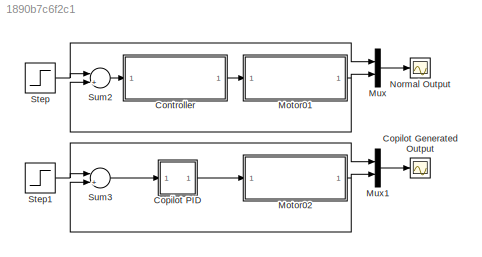
MODEL slx_1890b7c6f2c1
KIND model
CONFIG AbsTol = auto
CONFIG EnableMultiTasking = off
CONFIG FixedStep = auto
CONFIG MaxStep = auto
CONFIG MinStep = auto
CONFIG RelTol = 1e-3
CONFIG SampleTimeConstraint = Unconstrained
CONFIG Solver = VariableStepAuto
CONFIG SolverName = VariableStepAuto
CONFIG StartTime = 0.0
CONFIG StopTime = 10.0
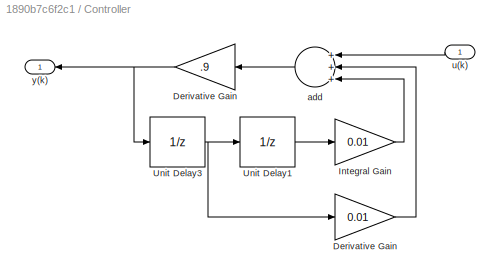
BLOCK [SubSystem] Controller
  Ports = [1, 1]
  RequestExecContextInheritance = off
BLOCK [Gain] Controller/Derivative Gain
  Gain = 0.01
  OutDataTypeStr = Inherit: Inherit via internal rule
  ParamDataTypeStr = Inherit: Inherit via internal rule
  SaturateOnIntegerOverflow = off
BLOCK [Gain] Controller/Derivative Gain 
  Gain = .9
  OutDataTypeStr = Inherit: Inherit via internal rule
  ParamDataTypeStr = Inherit: Inherit via internal rule
  SaturateOnIntegerOverflow = off
BLOCK [Gain] Controller/Integral Gain 
  Gain = 0.01
  OutDataTypeStr = Inherit: Inherit via internal rule
  ParamDataTypeStr = Inherit: Inherit via internal rule
  SaturateOnIntegerOverflow = off
BLOCK [UnitDelay] Controller/Unit Delay1
  InputProcessing = Elements as channels (sample based)
  SampleTime = -1
BLOCK [UnitDelay] Controller/Unit Delay3
  InputProcessing = Elements as channels (sample based)
  SampleTime = -1
BLOCK [Sum] Controller/add
  InputSameDT = off
  Inputs = +++
  OutDataTypeStr = Inherit: Inherit via internal rule
  Ports = [3, 1]
  SaturateOnIntegerOverflow = off
BLOCK [Inport] Controller/u(k)
  IconDisplay = Port number
BLOCK [Outport] Controller/y(k)
  IconDisplay = Port number
BLOCK [Scope] Copilot Generated Output
  Floating = off
  NumInputPorts = 1
  Ports = [1]
  ScopeSpecificationString = Simulink.scopes.TimeScopeBlockCfg('CurrentConfiguration', extmgr.ConfigurationSet(extmgr.Configuration('Core','General UI',true),extmgr.Configuration('Core','Source UI',true),extmgr.Configuration('Sources','WiredSimulink',true),extmgr.Configuration('Visuals','Time Domain',true,'SerializedDisplays',{struct('MinYLimReal','0.93588','MaxYLimReal','1.05536','YLabelReal','','MinYLimMag','0.93588','MaxYL...<+1399ch>
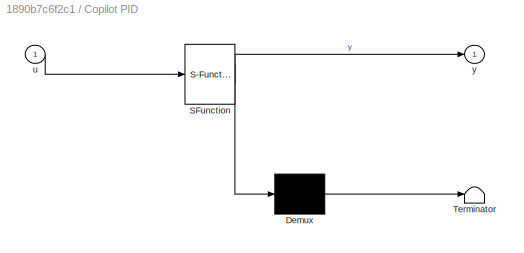
BLOCK [SubSystem] Copilot PID
  ErrorFcn = Stateflow.Translate.translate
  PermitHierarchicalResolution = ExplicitOnly
  Ports = [1, 1]
  RequestExecContextInheritance = off
  SFBlockType = MATLAB Function
  TreatAsAtomicUnit = on
BLOCK [Demux] Copilot PID/ Demux 
  Outputs = 1
  Ports = [1, 1]
BLOCK [S-Function] Copilot PID/ SFunction 
  EnableBusSupport = on
  FunctionName = sf_sfun
  PortCounts = [1 2]
  Ports = [1, 2]
  SFcnIsStateOwnerBlock = off
  SFunctionDeploymentMode = off
  Tag = Stateflow S-Function PID 2
BLOCK [Terminator] Copilot PID/ Terminator 
BLOCK [Inport] Copilot PID/u
  IconDisplay = Port number
BLOCK [Outport] Copilot PID/y
  IconDisplay = Port number
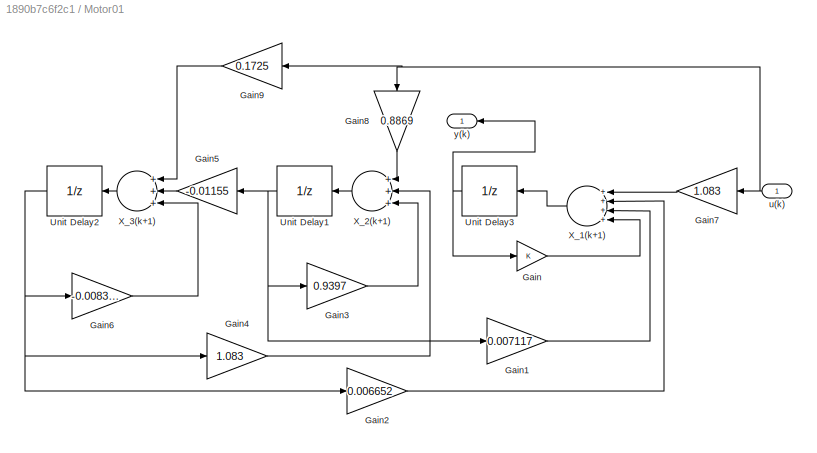
BLOCK [SubSystem] Motor01
  Ports = [1, 1]
  RequestExecContextInheritance = off
BLOCK [Gain] Motor01/Gain
  OutDataTypeStr = Inherit: Inherit via internal rule
  ParamDataTypeStr = Inherit: Inherit via internal rule
  SaturateOnIntegerOverflow = off
BLOCK [Gain] Motor01/Gain1
  Gain = 0.007117
  OutDataTypeStr = Inherit: Inherit via internal rule
  ParamDataTypeStr = Inherit: Inherit via internal rule
  SaturateOnIntegerOverflow = off
BLOCK [Gain] Motor01/Gain2
  Gain = 0.006652
  OutDataTypeStr = Inherit: Inherit via internal rule
  ParamDataTypeStr = Inherit: Inherit via internal rule
  SaturateOnIntegerOverflow = off
BLOCK [Gain] Motor01/Gain3
  Gain = 0.9397
  OutDataTypeStr = Inherit: Inherit via internal rule
  ParamDataTypeStr = Inherit: Inherit via internal rule
  SaturateOnIntegerOverflow = off
BLOCK [Gain] Motor01/Gain4
  Gain = 1.083
  OutDataTypeStr = Inherit: Inherit via internal rule
  ParamDataTypeStr = Inherit: Inherit via internal rule
  SaturateOnIntegerOverflow = off
BLOCK [Gain] Motor01/Gain5
  Gain = -0.01155
  OutDataTypeStr = Inherit: Inherit via internal rule
  ParamDataTypeStr = Inherit: Inherit via internal rule
  SaturateOnIntegerOverflow = off
BLOCK [Gain] Motor01/Gain6
  Gain = -0.008308
  OutDataTypeStr = Inherit: Inherit via internal rule
  ParamDataTypeStr = Inherit: Inherit via internal rule
  SaturateOnIntegerOverflow = off
BLOCK [Gain] Motor01/Gain7
  Gain = 1.083
  OutDataTypeStr = Inherit: Inherit via internal rule
  ParamDataTypeStr = Inherit: Inherit via internal rule
  SaturateOnIntegerOverflow = off
BLOCK [Gain] Motor01/Gain8
  Gain = 0.8869
  OutDataTypeStr = Inherit: Inherit via internal rule
  ParamDataTypeStr = Inherit: Inherit via internal rule
  SaturateOnIntegerOverflow = off
BLOCK [Gain] Motor01/Gain9
  Gain = 0.1725
  OutDataTypeStr = Inherit: Inherit via internal rule
  ParamDataTypeStr = Inherit: Inherit via internal rule
  SaturateOnIntegerOverflow = off
BLOCK [UnitDelay] Motor01/Unit Delay1
  InputProcessing = Elements as channels (sample based)
  SampleTime = -1
BLOCK [UnitDelay] Motor01/Unit Delay2
  InputProcessing = Elements as channels (sample based)
  SampleTime = -1
BLOCK [UnitDelay] Motor01/Unit Delay3
  InputProcessing = Elements as channels (sample based)
  SampleTime = -1
BLOCK [Sum] Motor01/X_1(k+1)
  InputSameDT = off
  Inputs = ++++
  OutDataTypeStr = Inherit: Inherit via internal rule
  Ports = [4, 1]
  SaturateOnIntegerOverflow = off
BLOCK [Sum] Motor01/X_2(k+1)
  InputSameDT = off
  Inputs = +++
  OutDataTypeStr = Inherit: Inherit via internal rule
  Ports = [3, 1]
  SaturateOnIntegerOverflow = off
BLOCK [Sum] Motor01/X_3(k+1)
  InputSameDT = off
  Inputs = +++
  OutDataTypeStr = Inherit: Inherit via internal rule
  Ports = [3, 1]
  SaturateOnIntegerOverflow = off
BLOCK [Inport] Motor01/u(k)
  IconDisplay = Port number
BLOCK [Outport] Motor01/y(k)
  IconDisplay = Port number
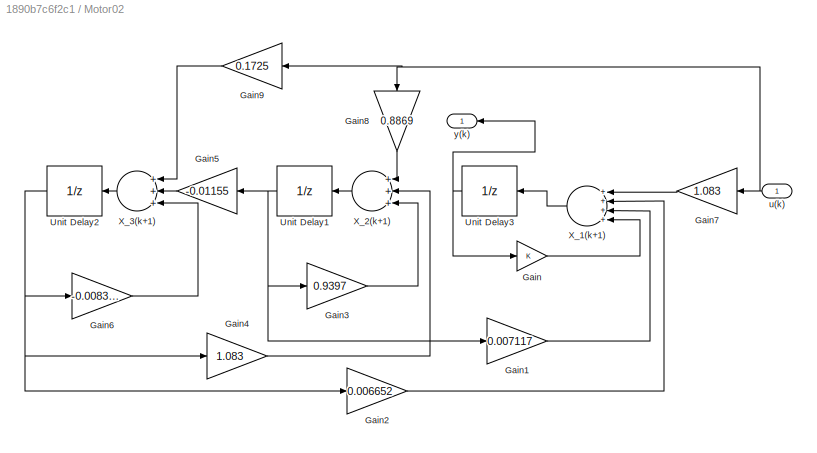
BLOCK [SubSystem] Motor02
  Ports = [1, 1]
  RequestExecContextInheritance = off
BLOCK [Gain] Motor02/Gain
  OutDataTypeStr = Inherit: Inherit via internal rule
  ParamDataTypeStr = Inherit: Inherit via internal rule
  SaturateOnIntegerOverflow = off
BLOCK [Gain] Motor02/Gain1
  Gain = 0.007117
  OutDataTypeStr = Inherit: Inherit via internal rule
  ParamDataTypeStr = Inherit: Inherit via internal rule
  SaturateOnIntegerOverflow = off
BLOCK [Gain] Motor02/Gain2
  Gain = 0.006652
  OutDataTypeStr = Inherit: Inherit via internal rule
  ParamDataTypeStr = Inherit: Inherit via internal rule
  SaturateOnIntegerOverflow = off
BLOCK [Gain] Motor02/Gain3
  Gain = 0.9397
  OutDataTypeStr = Inherit: Inherit via internal rule
  ParamDataTypeStr = Inherit: Inherit via internal rule
  SaturateOnIntegerOverflow = off
BLOCK [Gain] Motor02/Gain4
  Gain = 1.083
  OutDataTypeStr = Inherit: Inherit via internal rule
  ParamDataTypeStr = Inherit: Inherit via internal rule
  SaturateOnIntegerOverflow = off
BLOCK [Gain] Motor02/Gain5
  Gain = -0.01155
  OutDataTypeStr = Inherit: Inherit via internal rule
  ParamDataTypeStr = Inherit: Inherit via internal rule
  SaturateOnIntegerOverflow = off
BLOCK [Gain] Motor02/Gain6
  Gain = -0.008308
  OutDataTypeStr = Inherit: Inherit via internal rule
  ParamDataTypeStr = Inherit: Inherit via internal rule
  SaturateOnIntegerOverflow = off
BLOCK [Gain] Motor02/Gain7
  Gain = 1.083
  OutDataTypeStr = Inherit: Inherit via internal rule
  ParamDataTypeStr = Inherit: Inherit via internal rule
  SaturateOnIntegerOverflow = off
BLOCK [Gain] Motor02/Gain8
  Gain = 0.8869
  OutDataTypeStr = Inherit: Inherit via internal rule
  ParamDataTypeStr = Inherit: Inherit via internal rule
  SaturateOnIntegerOverflow = off
BLOCK [Gain] Motor02/Gain9
  Gain = 0.1725
  OutDataTypeStr = Inherit: Inherit via internal rule
  ParamDataTypeStr = Inherit: Inherit via internal rule
  SaturateOnIntegerOverflow = off
BLOCK [UnitDelay] Motor02/Unit Delay1
  InputProcessing = Elements as channels (sample based)
  SampleTime = -1
BLOCK [UnitDelay] Motor02/Unit Delay2
  InputProcessing = Elements as channels (sample based)
  SampleTime = -1
BLOCK [UnitDelay] Motor02/Unit Delay3
  InputProcessing = Elements as channels (sample based)
  SampleTime = -1
BLOCK [Sum] Motor02/X_1(k+1)
  InputSameDT = off
  Inputs = ++++
  OutDataTypeStr = Inherit: Inherit via internal rule
  Ports = [4, 1]
  SaturateOnIntegerOverflow = off
BLOCK [Sum] Motor02/X_2(k+1)
  InputSameDT = off
  Inputs = +++
  OutDataTypeStr = Inherit: Inherit via internal rule
  Ports = [3, 1]
  SaturateOnIntegerOverflow = off
BLOCK [Sum] Motor02/X_3(k+1)
  InputSameDT = off
  Inputs = +++
  OutDataTypeStr = Inherit: Inherit via internal rule
  Ports = [3, 1]
  SaturateOnIntegerOverflow = off
BLOCK [Inport] Motor02/u(k)
  IconDisplay = Port number
BLOCK [Outport] Motor02/y(k)
  IconDisplay = Port number
BLOCK [Mux] Mux
  DisplayOption = bar
  Inputs = 2
  Ports = [2, 1]
BLOCK [Mux] Mux1
  DisplayOption = bar
  Inputs = 2
  Ports = [2, 1]
BLOCK [Scope] Normal Output
  Floating = off
  NumInputPorts = 1
  Ports = [1]
  ScopeSpecificationString = Simulink.scopes.TimeScopeBlockCfg('CurrentConfiguration', extmgr.ConfigurationSet(extmgr.Configuration('Core','General UI',true),extmgr.Configuration('Core','Source UI',true),extmgr.Configuration('Sources','WiredSimulink',true,'DataLoggingVariableName','ScopeData5'),extmgr.Configuration('Visuals','Time Domain',true,'SerializedDisplays',{struct('MinYLimReal','0.93588','MaxYLimReal','1.05536','YLabe...<+1438ch>
BLOCK [Step] Step
  SampleTime = 0
  Time = .2
BLOCK [Step] Step1
  SampleTime = 0
  Time = .2
BLOCK [Sum] Sum2
  InputSameDT = off
  Inputs = |+-
  OutDataTypeStr = Inherit: Inherit via internal rule
  Ports = [2, 1]
  SaturateOnIntegerOverflow = off
BLOCK [Sum] Sum3
  InputSameDT = off
  Inputs = |+-
  OutDataTypeStr = Inherit: Inherit via internal rule
  Ports = [2, 1]
  SaturateOnIntegerOverflow = off
NET Controller/Derivative Gain :1 -> Controller/Unit Delay3:1, Controller/y(k):1
LINE Controller/Derivative Gain:1 -> Controller/add:2
LINE Controller/Integral Gain :1 -> Controller/add:3
LINE Controller/Unit Delay1:1 -> Controller/Integral Gain :1
NET Controller/Unit Delay3:1 -> Controller/Derivative Gain:1, Controller/Unit Delay1:1
LINE Controller/add:1 -> Controller/Derivative Gain :1
LINE Controller/u(k):1 -> Controller/add:1
LINE Controller:1 -> Motor01:1
LINE Copilot PID:1 -> Motor02:1
LINE Motor01/Gain1:1 -> Motor01/X_1(k+1):3
LINE Motor01/Gain2:1 -> Motor01/X_1(k+1):2
LINE Motor01/Gain3:1 -> Motor01/X_2(k+1):3
LINE Motor01/Gain4:1 -> Motor01/X_2(k+1):2
LINE Motor01/Gain5:1 -> Motor01/X_3(k+1):2
LINE Motor01/Gain6:1 -> Motor01/X_3(k+1):3
LINE Motor01/Gain7:1 -> Motor01/X_1(k+1):1
LINE Motor01/Gain8:1 -> Motor01/X_2(k+1):1
LINE Motor01/Gain9:1 -> Motor01/X_3(k+1):1
LINE Motor01/Gain:1 -> Motor01/X_1(k+1):4
NET Motor01/Unit Delay1:1 -> Motor01/Gain1:1, Motor01/Gain3:1, Motor01/Gain5:1
NET Motor01/Unit Delay2:1 -> Motor01/Gain2:1, Motor01/Gain4:1, Motor01/Gain6:1
NET Motor01/Unit Delay3:1 -> Motor01/Gain:1, Motor01/y(k):1
LINE Motor01/X_1(k+1):1 -> Motor01/Unit Delay3:1
LINE Motor01/X_2(k+1):1 -> Motor01/Unit Delay1:1
LINE Motor01/X_3(k+1):1 -> Motor01/Unit Delay2:1
NET Motor01/u(k):1 -> Motor01/Gain7:1, Motor01/Gain8:1, Motor01/Gain9:1
NET Motor01:1 -> Mux:2, Sum2:2
LINE Motor02/Gain1:1 -> Motor02/X_1(k+1):3
LINE Motor02/Gain2:1 -> Motor02/X_1(k+1):2
LINE Motor02/Gain3:1 -> Motor02/X_2(k+1):3
LINE Motor02/Gain4:1 -> Motor02/X_2(k+1):2
LINE Motor02/Gain5:1 -> Motor02/X_3(k+1):2
LINE Motor02/Gain6:1 -> Motor02/X_3(k+1):3
LINE Motor02/Gain7:1 -> Motor02/X_1(k+1):1
LINE Motor02/Gain8:1 -> Motor02/X_2(k+1):1
LINE Motor02/Gain9:1 -> Motor02/X_3(k+1):1
LINE Motor02/Gain:1 -> Motor02/X_1(k+1):4
NET Motor02/Unit Delay1:1 -> Motor02/Gain1:1, Motor02/Gain3:1, Motor02/Gain5:1
NET Motor02/Unit Delay2:1 -> Motor02/Gain2:1, Motor02/Gain4:1, Motor02/Gain6:1
NET Motor02/Unit Delay3:1 -> Motor02/Gain:1, Motor02/y(k):1
LINE Motor02/X_1(k+1):1 -> Motor02/Unit Delay3:1
LINE Motor02/X_2(k+1):1 -> Motor02/Unit Delay1:1
LINE Motor02/X_3(k+1):1 -> Motor02/Unit Delay2:1
NET Motor02/u(k):1 -> Motor02/Gain7:1, Motor02/Gain8:1, Motor02/Gain9:1
NET Motor02:1 -> Mux1:2, Sum3:2
LINE Mux1:1 -> Copilot Generated Output:1
LINE Mux:1 -> Normal Output:1
NET Step1:1 -> Mux1:1, Sum3:1
NET Step:1 -> Mux:1, Sum2:1
LINE Sum2:1 -> Controller:1
LINE Sum3:1 -> Copilot PID:1
note: NET lines group one-source signal fan-out (src -> all destinations, sorted); 1:1 wires keep LINE
CHART Copilot PID states=1 transitions=1
  STATE_LABEL 'eML_blk_kernel()'
  STATE_LABEL "SCRIPT:\nfunction y = driver(u)\ny = 0.0;\ny = coder.ceval('driver',u);\n"
